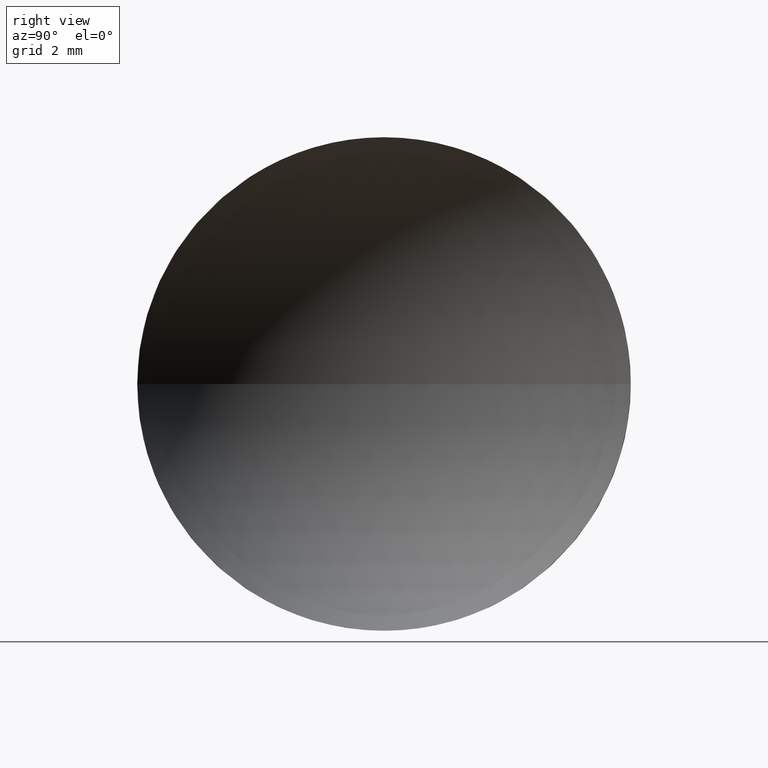
[diagram: clean part render]
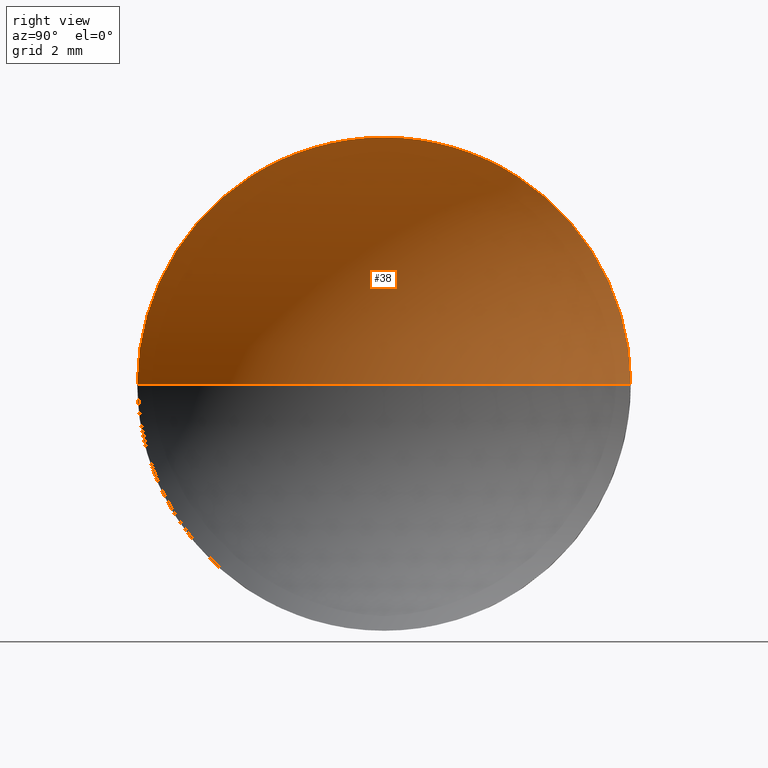
[diagram: same view with one face highlighted and labeled with its STEP entity id]
A machine part, right view. The second image highlights one B-rep face of the part: STEP entity #38.
In plain terms, the highlighted spherical surface has radius 5.73 mm.
Its self-contained STEP definition (entity closure, byte-faithful):
#2 = AXIS2_PLACEMENT_3D ( 'NONE', #135, #167, #96 ) ;
#12 = CIRCLE ( 'NONE', #115, 5.729999999999998600 ) ;
#21 = CARTESIAN_POINT ( 'NONE',  ( 42.86703892959313600, 26.06225218280608400, 0.0000000000000000000 ) ) ;
#22 = DIRECTION ( 'NONE',  ( -1.000000000000000000, 0.0000000000000000000, 0.0000000000000000000 ) ) ;
#25 = AXIS2_PLACEMENT_3D ( 'NONE', #109, #46, #22 ) ;
#27 = VERTEX_POINT ( 'NONE', #146 ) ;
#36 = CIRCLE ( 'NONE', #2, 4.999999999999997300 ) ;
#38 = ADVANCED_FACE ( 'NONE', ( #141 ), #67, .F. ) ;
#41 = VERTEX_POINT ( 'NONE', #42 ) ;
#42 = CARTESIAN_POINT ( 'NONE',  ( 45.79830707391277400, 31.06225218280608000, 6.123233995736760400E-016 ) ) ;
#46 = DIRECTION ( 'NONE',  ( 0.0000000000000000000, 0.0000000000000000000, -1.000000000000000000 ) ) ;
#49 = ORIENTED_EDGE ( 'NONE', *, *, #107, .F. ) ;
#57 = CARTESIAN_POINT ( 'NONE',  ( 45.79830707391277400, 26.06225218280608000, 0.0000000000000000000 ) ) ;
#66 = ORIENTED_EDGE ( 'NONE', *, *, #116, .T. ) ;
#67 = SPHERICAL_SURFACE ( 'NONE', #84, 5.729999999999997800 ) ;
#76 = ORIENTED_EDGE ( 'NONE', *, *, #159, .F. ) ;
#78 = EDGE_CURVE ( 'NONE', #120, #27, #168, .T. ) ;
#81 = DIRECTION ( 'NONE',  ( 0.0000000000000000000, -1.224646799147353200E-016, 1.000000000000000000 ) ) ;
#84 = AXIS2_PLACEMENT_3D ( 'NONE', #134, #162, #147 ) ;
#94 = VERTEX_POINT ( 'NONE', #21 ) ;
#96 = DIRECTION ( 'NONE',  ( 0.0000000000000000000, 0.0000000000000000000, 1.000000000000000000 ) ) ;
#105 = DIRECTION ( 'NONE',  ( 0.0000000000000000000, 0.0000000000000000000, 1.000000000000000000 ) ) ;
#107 = EDGE_CURVE ( 'NONE', #27, #41, #36, .T. ) ;
#109 = CARTESIAN_POINT ( 'NONE',  ( 48.59703892959313300, 26.06225218280608400, 0.0000000000000000000 ) ) ;
#112 = CIRCLE ( 'NONE', #25, 5.729999999999998600 ) ;
#115 = AXIS2_PLACEMENT_3D ( 'NONE', #163, #81, #180 ) ;
#116 = EDGE_CURVE ( 'NONE', #120, #94, #112, .T. ) ;
#120 = VERTEX_POINT ( 'NONE', #137 ) ;
#134 = CARTESIAN_POINT ( 'NONE',  ( 48.59703892959313300, 26.06225218280608400, 0.0000000000000000000 ) ) ;
#135 = CARTESIAN_POINT ( 'NONE',  ( 45.79830707391277400, 26.06225218280608000, 0.0000000000000000000 ) ) ;
#137 = CARTESIAN_POINT ( 'NONE',  ( 45.79830707391277400, 21.06225218280608800, 0.0000000000000000000 ) ) ;
#141 = FACE_OUTER_BOUND ( 'NONE', #158, .T. ) ;
#146 = CARTESIAN_POINT ( 'NONE',  ( 45.79830707391277400, 26.06225218280608000, 4.999999999999997300 ) ) ;
#147 = DIRECTION ( 'NONE',  ( 0.0000000000000000000, -1.000000000000000000, 0.0000000000000000000 ) ) ;
#158 = EDGE_LOOP ( 'NONE', ( #76, #49, #175, #66 ) ) ;
#159 = EDGE_CURVE ( 'NONE', #41, #94, #12, .T. ) ;
#160 = DIRECTION ( 'NONE',  ( -1.000000000000000000, -0.0000000000000000000, -0.0000000000000000000 ) ) ;
#162 = DIRECTION ( 'NONE',  ( 0.0000000000000000000, 0.0000000000000000000, 1.000000000000000000 ) ) ;
#163 = CARTESIAN_POINT ( 'NONE',  ( 48.59703892959313300, 26.06225218280608400, 0.0000000000000000000 ) ) ;
#164 = AXIS2_PLACEMENT_3D ( 'NONE', #57, #160, #105 ) ;
#167 = DIRECTION ( 'NONE',  ( -1.000000000000000000, -0.0000000000000000000, -0.0000000000000000000 ) ) ;
#168 = CIRCLE ( 'NONE', #164, 4.999999999999997300 ) ;
#175 = ORIENTED_EDGE ( 'NONE', *, *, #78, .F. ) ;
#180 = DIRECTION ( 'NONE',  ( 0.0000000000000000000, -1.000000000000000000, -1.224646799147353000E-016 ) ) ;